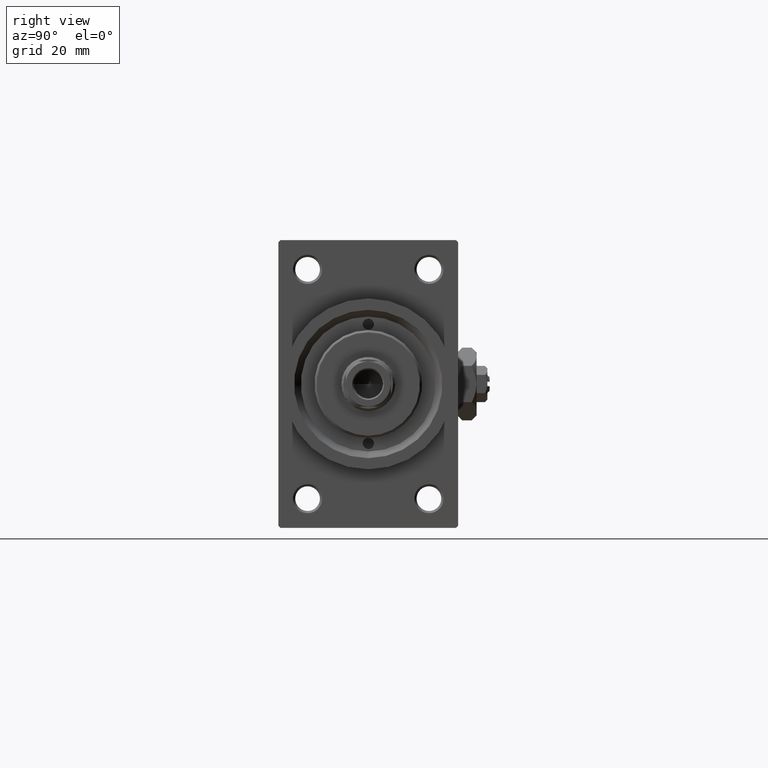
[diagram: clean part render]
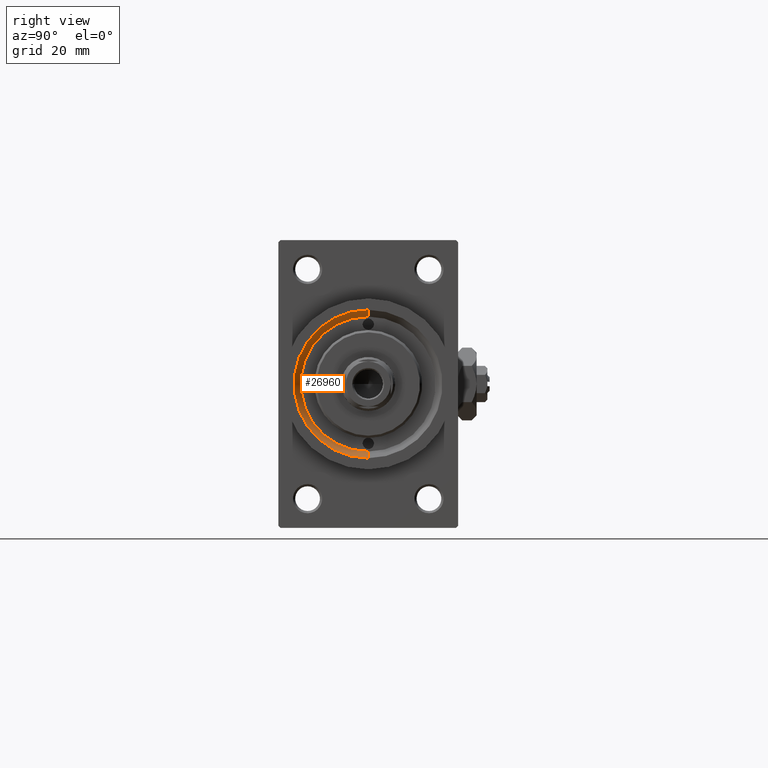
[diagram: same view with one face highlighted and labeled with its STEP entity id]
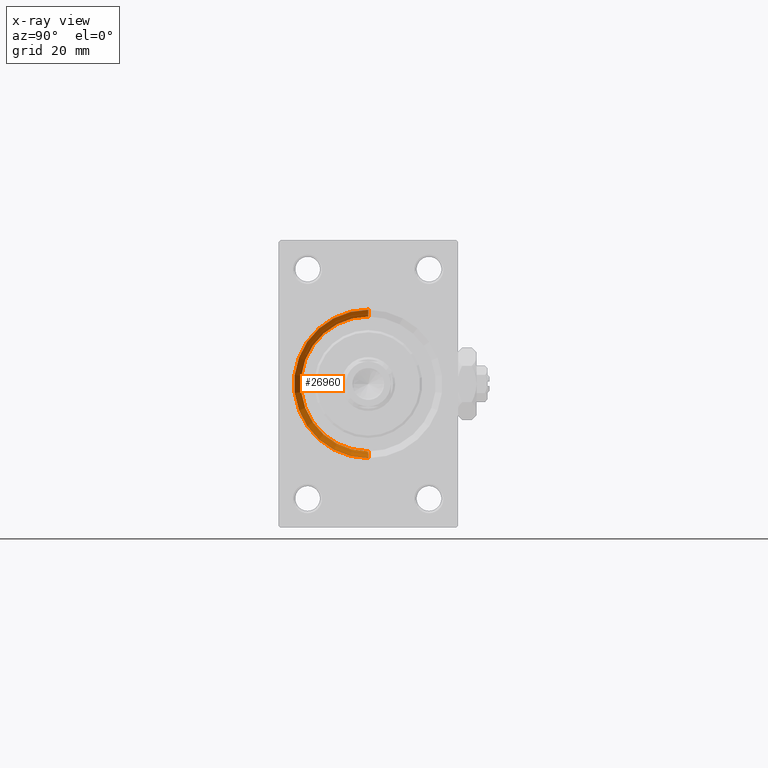
[diagram: x-ray of the same camera — body ghosted, the highlighted face saturated]
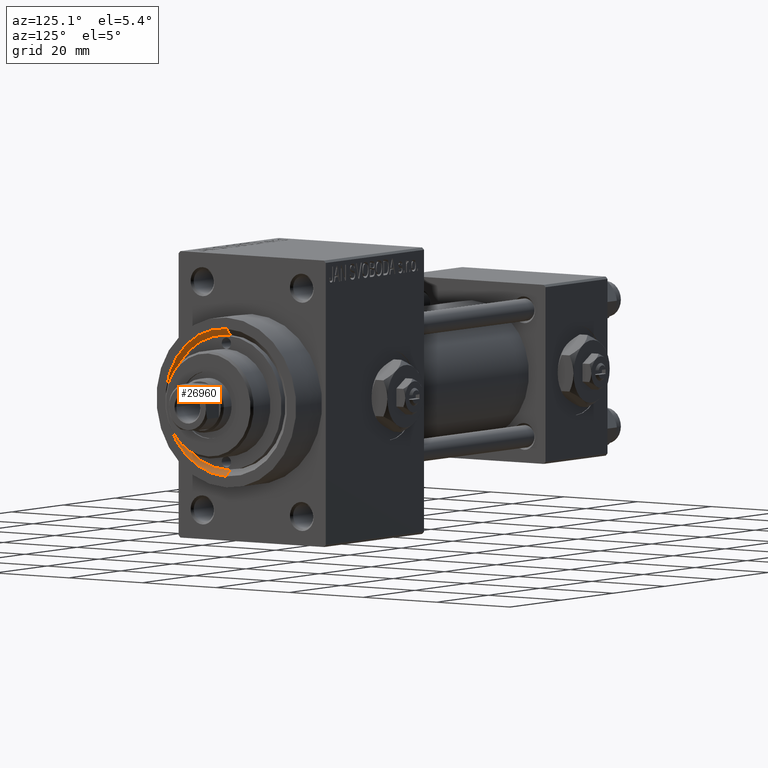
[diagram: same view with one face highlighted and labeled with its STEP entity id]
A machine part, right view. The second image highlights one B-rep face of the part: STEP entity #26960.
The next image is the same camera in x-ray: the body ghosted, the highlighted face saturated — about 0% of this face is hidden behind the body in this view.
A second angle (auxiliary view) of the same face is appended — the face is thin or edge-on in the first view.
In plain terms, the highlighted conical surface has half-angle 45 deg.
Its self-contained STEP definition (entity closure, byte-faithful):
#1047 = CARTESIAN_POINT ( 'NONE',  ( 117.5000000000000000, 0.000000000000000000, -15.00000000000000000 ) ) ;
#1366 = CARTESIAN_POINT ( 'NONE',  ( 117.5000000000000000, 1.836970198721029589E-15, 15.00000000000000000 ) ) ;
#3112 = LINE ( 'NONE', #37450, #44795 ) ;
#4287 = CARTESIAN_POINT ( 'NONE',  ( 117.5000000000000000, 1.836970198721029589E-15, 15.00000000000000000 ) ) ;
#6850 = DIRECTION ( 'NONE',  ( 0.7071067811865507924, 0.000000000000000000, -0.7071067811865441310 ) ) ;
#8476 = VERTEX_POINT ( 'NONE', #1047 ) ;
#9765 = CARTESIAN_POINT ( 'NONE',  ( 117.5000000000000000, 0.000000000000000000, 0.000000000000000000 ) ) ;
#10759 = VERTEX_POINT ( 'NONE', #27122 ) ;
#11352 = DIRECTION ( 'NONE',  ( 0.000000000000000000, 0.000000000000000000, -1.000000000000000000 ) ) ;
#13894 = EDGE_CURVE ( 'NONE', #10759, #41227, #49097, .T. ) ;
#15997 = DIRECTION ( 'NONE',  ( 0.7071067811865507924, 8.659560562354892183E-17, 0.7071067811865441310 ) ) ;
#17182 = VERTEX_POINT ( 'NONE', #1366 ) ;
#19859 = ORIENTED_EDGE ( 'NONE', *, *, #34572, .T. ) ;
#21531 = DIRECTION ( 'NONE',  ( 0.000000000000000000, 0.000000000000000000, -1.000000000000000000 ) ) ;
#21778 = DIRECTION ( 'NONE',  ( 1.000000000000000000, 0.000000000000000000, 0.000000000000000000 ) ) ;
#22061 = AXIS2_PLACEMENT_3D ( 'NONE', #45467, #44739, #11352 ) ;
#23127 = VECTOR ( 'NONE', #15997, 1000.000000000000114 ) ;
#23666 = EDGE_LOOP ( 'NONE', ( #30082, #19859, #45249, #38515 ) ) ;
#25371 = AXIS2_PLACEMENT_3D ( 'NONE', #9765, #39648, #35904 ) ;
#26012 = CARTESIAN_POINT ( 'NONE',  ( 117.5000000000000000, 0.000000000000000000, 0.000000000000000000 ) ) ;
#26960 = ADVANCED_FACE ( 'NONE', ( #29264 ), #30945, .F. ) ;
#27122 = CARTESIAN_POINT ( 'NONE',  ( 119.0000000000000142, 0.000000000000000000, -16.50000000000000000 ) ) ;
#29264 = FACE_OUTER_BOUND ( 'NONE', #23666, .T. ) ;
#30082 = ORIENTED_EDGE ( 'NONE', *, *, #30662, .F. ) ;
#30662 = EDGE_CURVE ( 'NONE', #17182, #8476, #39678, .T. ) ;
#30945 = CONICAL_SURFACE ( 'NONE', #35676, 15.00000000000000000, 0.7853981633974437271 ) ;
#33615 = CARTESIAN_POINT ( 'NONE',  ( 119.0000000000000142, 2.020667218593132706E-15, 16.50000000000000000 ) ) ;
#34572 = EDGE_CURVE ( 'NONE', #17182, #41227, #42120, .T. ) ;
#35676 = AXIS2_PLACEMENT_3D ( 'NONE', #26012, #21778, #21531 ) ;
#35904 = DIRECTION ( 'NONE',  ( 0.000000000000000000, 0.000000000000000000, -1.000000000000000000 ) ) ;
#37450 = CARTESIAN_POINT ( 'NONE',  ( 117.5000000000000000, 0.000000000000000000, -15.00000000000000000 ) ) ;
#38515 = ORIENTED_EDGE ( 'NONE', *, *, #45831, .F. ) ;
#39648 = DIRECTION ( 'NONE',  ( 1.000000000000000000, 0.000000000000000000, 0.000000000000000000 ) ) ;
#39678 = CIRCLE ( 'NONE', #25371, 15.00000000000000000 ) ;
#41227 = VERTEX_POINT ( 'NONE', #33615 ) ;
#42120 = LINE ( 'NONE', #4287, #23127 ) ;
#44739 = DIRECTION ( 'NONE',  ( -1.000000000000000000, -0.000000000000000000, -0.000000000000000000 ) ) ;
#44795 = VECTOR ( 'NONE', #6850, 1000.000000000000114 ) ;
#45249 = ORIENTED_EDGE ( 'NONE', *, *, #13894, .F. ) ;
#45467 = CARTESIAN_POINT ( 'NONE',  ( 119.0000000000000142, 0.000000000000000000, 0.000000000000000000 ) ) ;
#45831 = EDGE_CURVE ( 'NONE', #8476, #10759, #3112, .T. ) ;
#49097 = CIRCLE ( 'NONE', #22061, 16.50000000000000000 ) ;